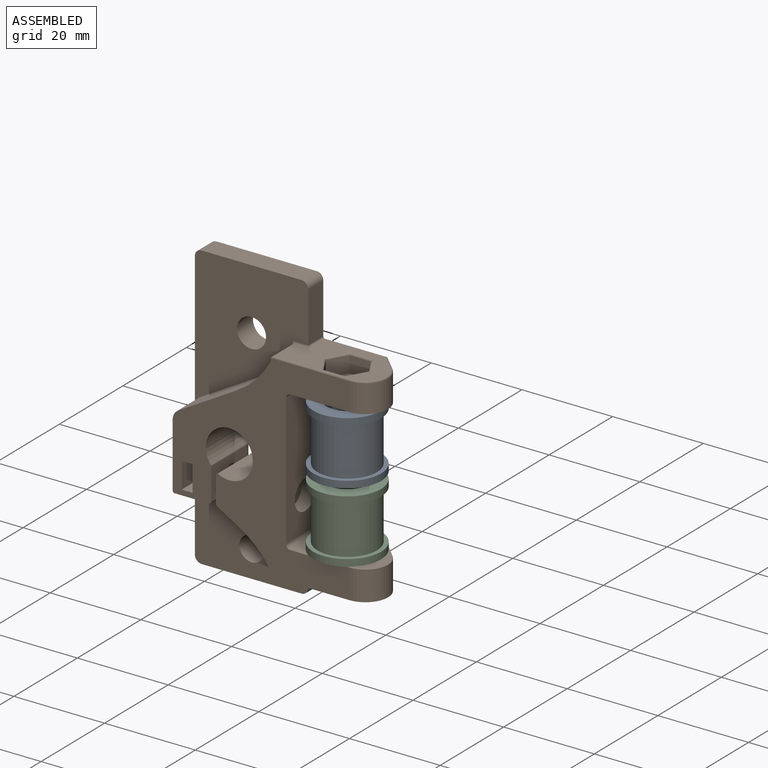
[diagram: assembled view]
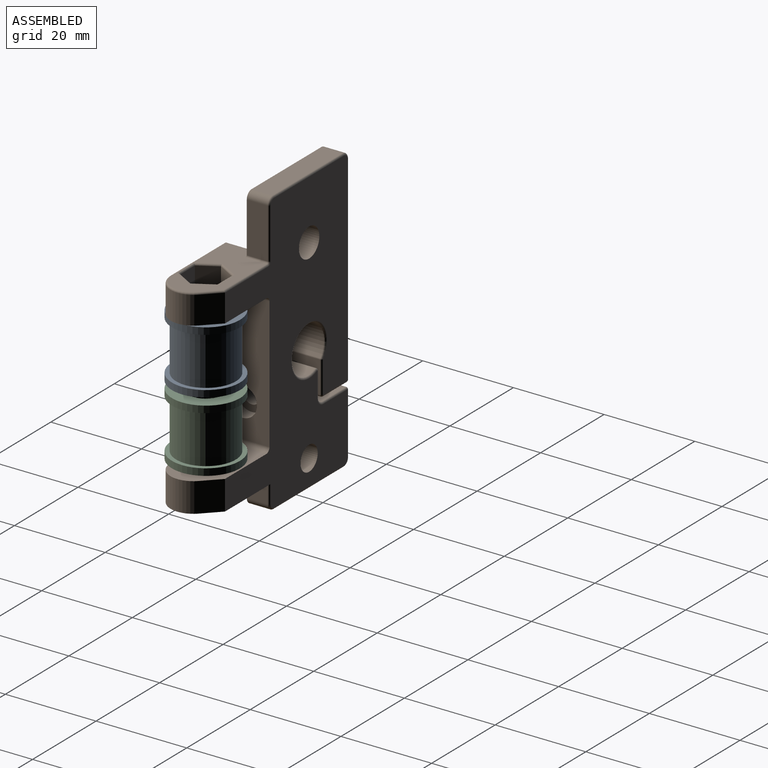
[diagram: assembled view, second angle]
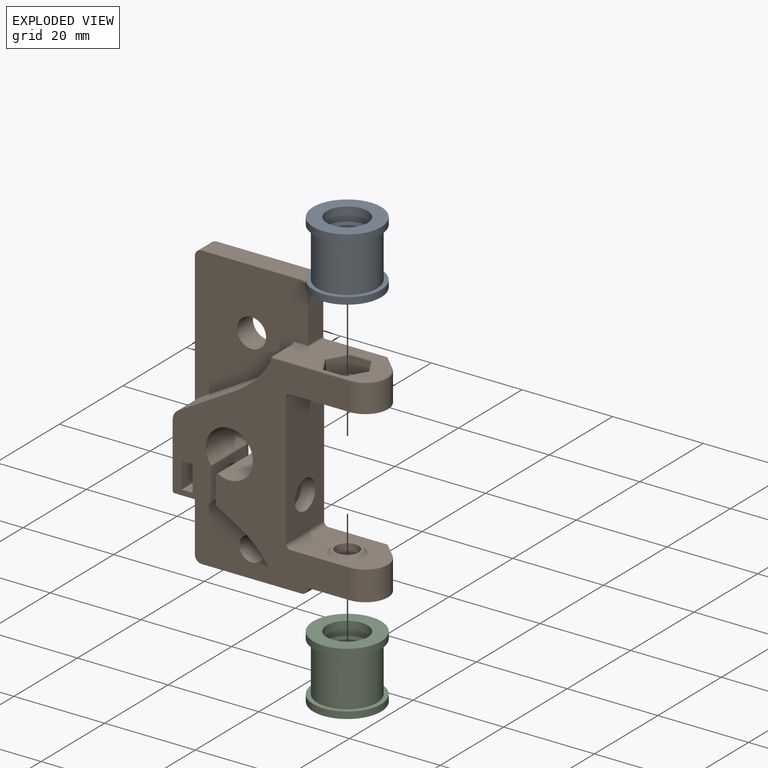
[diagram: exploded view]
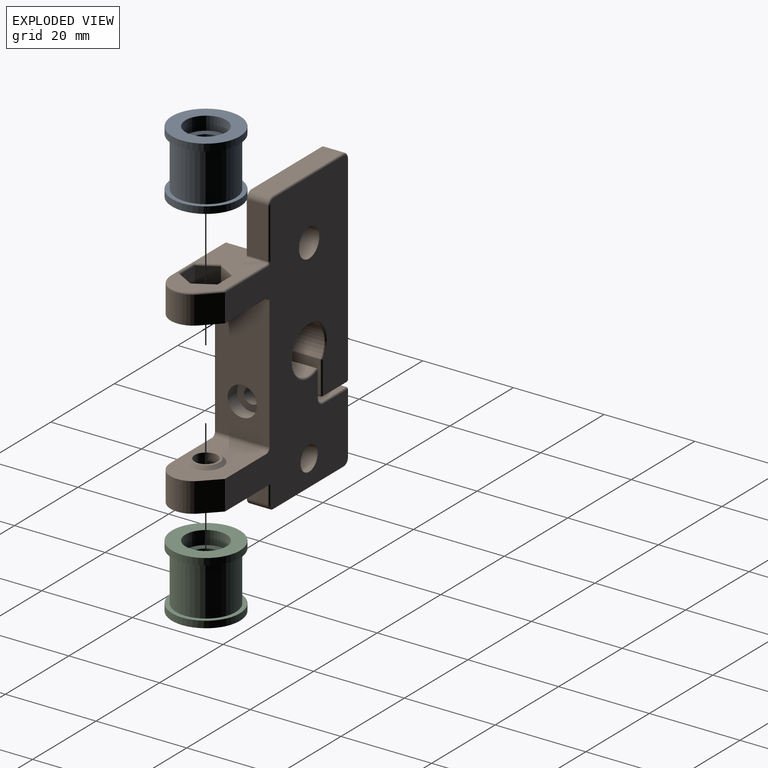
[diagram: exploded view, second angle]
ASSEMBLY  parts=3 mates=2
PART A: 12 faces, bbox 14x15x15 mm
  f0: cylinder r=7.5mm len=15mm, axis (-1,0,0), area 70.7mm2, adj f1,f11
  f1: plane 15x15mm, normal (-1,0,0), area 113.1mm2, adj f0,f2
  f2: cylinder r=4.5mm len=9mm, axis (-1,0,0), area 84.8mm2, adj f1,f3
  f3: plane 9x9mm, normal (-1,0,0), area 35.3mm2, adj f2,f4
  f4: cylinder r=3mm len=8mm, axis (-1,0,0), area 150.8mm2, adj f3,f5
  f5: plane 9x9mm, normal (1,0,0), area 35.3mm2, adj f4,f6
  f6: cylinder r=4.5mm len=9mm, axis (-1,0,0), area 84.8mm2, adj f5,f7
  f7: plane 15x15mm, normal (1,0,0), area 113.1mm2, adj f6,f8
  f8: cylinder r=7.5mm len=15mm, axis (-1,0,0), area 70.7mm2, adj f7,f9
  f9: plane 15x15mm, normal (-1,0,0), area 41.1mm2, adj f8,f10
  f10: cylinder r=6.57mm len=13.14mm, axis (-1,0,0), area 454.1mm2, adj f9,f11
  f11: plane 15x15mm, normal (1,0,0), area 41.1mm2, adj f0,f10
PART B: 109 faces, bbox 44.5x12.4x62.7 mm
  f0: plane 25x17mm, normal (0,-1,0), area 294mm2, adj f36,f37,f38,f39,f40,f41,f42,f43
  f1: plane 18x12mm, normal (0,0,-1), area 154.8mm2, adj f3,f4,f61,f62,f65,f70
  f2: cylinder r=2.5mm len=5mm, axis (0,0,-1), area 50.3mm2, adj f57,f58
  f3: plane 43.6x39mm, normal (0,-1,0), area 754.3mm2, adj f1,f17,f18,f19,f20,f21,f22,f23
  f4: plane 61.7x38.6mm, normal (0,1,0), area 1505.3mm2, adj f1,f23,f35,f46,f50,f62,f63,f64
  f5: cylinder r=2.5mm len=5mm, axis (0,0,1), area 26.7mm2, adj f7,f59
  f6: plane 11.1x4.6mm, normal (1,0,0), area 51.1mm2, adj f15,f24,f80,f82
  f7: plane 8.9x8.9mm, normal (0,0,-1), area 42.6mm2, adj f5,f8
  f8: cylinder r=4.45mm len=8.9mm, axis (0,0,1), area 153.8mm2, adj f7,f69
  f9: plane 6.5x6.5mm, normal (1,0,0), area 23.6mm2, adj f12,f16
  f10: plane 2.85x2.4mm, normal (0,-0.87,0.5), area 7.9mm2, adj f11,f17,f18,f19
  f11: plane 2.85x2.4mm, normal (0,-0.87,-0.5), area 7.9mm2, adj f10,f17,f19,f20
  f12: cylinder r=3.25mm len=6.5mm, axis (-1,0,0), area 61.3mm2, adj f9,f23
  f13: cylinder r=1.75mm len=3.5mm, axis (-1,0,0), area 22mm2, adj f17,f27
  f14: cylinder r=1.75mm len=4.1mm, axis (-1,0,0), area 45.1mm2, adj f19,f31
  f15: plane 31.44x25mm, normal (0,-1,0), area 515.6mm2, adj f6,f21,f22,f24,f25,f26,f27,f35
  f16: cylinder r=1.75mm len=12.5mm, axis (-1,0,0), area 137.4mm2, adj f9,f43
  f17: plane 9.29x5.7mm, normal (1,0,0), area 38.6mm2, adj f3,f10,f11,f13,f18,f20
  f18: plane 7.65x2.4mm, normal (0,0,1), area 18.3mm2, adj f3,f10,f17,f19
  f19: plane 9.29x5.7mm, normal (-1,0,0), area 38.6mm2, adj f3,f10,f11,f14,f18,f20
  f20: plane 7.65x2.4mm, normal (0,0,-1), area 18.3mm2, adj f3,f11,f17,f19
  f21: cylinder r=2.5mm len=7mm, axis (0,-1,0), area 18.3mm2, adj f3,f15,f22,f27
  f22: plane 12.76x7.37mm, normal (-0.5,0,0.87), area 103.1mm2, adj f3,f15,f21,f48
  f23: plane 29x12mm, normal (1,0,0), area 314.8mm2, adj f3,f4,f12,f62,f63
  f24: cylinder r=1.5mm len=4.6mm, axis (0,-1,0), area 10.8mm2, adj f6,f15,f25,f83
  f25: plane 22x4.6mm, normal (0,0,1), area 101.2mm2, adj f15,f24,f26,f84
  f26: cylinder r=1.5mm len=4.6mm, axis (0,-1,0), area 10.8mm2, adj f15,f25,f27,f85
  f27: plane 44x11.6mm, normal (-1,0,0), area 291.2mm2, adj f3,f13,f15,f21,f26,f28,f86
  f28: cylinder r=0.5mm len=11.6mm, axis (0,-1,0), area 9.1mm2, adj f3,f27,f29,f87
  f29: plane 11.6x7.5mm, normal (0,0,-1), area 87mm2, adj f3,f28,f30,f88
  f30: cylinder r=0.5mm len=11.6mm, axis (0,-1,0), area 9.1mm2, adj f3,f29,f31,f89
  f31: plane 11.6x7mm, normal (1,0,0), area 71.6mm2, adj f3,f14,f30,f32,f90
  f32: cylinder r=0.5mm len=11.6mm, axis (0,1,0), area 3.8mm2, adj f3,f31,f33,f91
  f33: cylinder r=5.2mm len=11.6mm, axis (0,-1,0), area 351.5mm2, adj f3,f32,f34,f92
  f34: cylinder r=0.5mm len=11.6mm, axis (0,-1,0), area 11.7mm2, adj f3,f33,f43,f93
  f35: cylinder r=3.2mm len=6.4mm, axis (0,-1,0), area 100.5mm2, adj f4,f15
  f36: cylinder r=1.5mm len=4.6mm, axis (0,-1,0), area 10.8mm2, adj f0,f37,f47,f101
  f37: plane 22x4.6mm, normal (0,0,-1), area 101.2mm2, adj f0,f36,f38,f100
  f38: cylinder r=1.5mm len=4.6mm, axis (0,-1,0), area 10.8mm2, adj f0,f37,f39,f99
  f39: plane 13.5x4.6mm, normal (-1,0,0), area 62.1mm2, adj f0,f38,f40,f98
  f40: cylinder r=0.5mm len=4.6mm, axis (0,1,0), area 3.6mm2, adj f0,f39,f41,f97
  f41: plane 7.5x4.6mm, normal (0,0,1), area 34.5mm2, adj f0,f40,f42,f96
  f42: cylinder r=1.5mm len=4.6mm, axis (0,1,0), area 10.8mm2, adj f0,f41,f43,f95
  f43: plane 11.6x5.59mm, normal (-1,0,0), area 54.2mm2, adj f0,f3,f16,f34,f42,f44,f94
  f44: cylinder r=0.5mm len=7mm, axis (0,-1,0), area 3.7mm2, adj f0,f3,f43,f45
  f45: plane 7x4.7mm, normal (-0.5,0,-0.87), area 38mm2, adj f0,f3,f44,f49
  f46: cylinder r=2.7mm len=5.4mm, axis (0,-1,0), area 84.8mm2, adj f0,f4
  f47: plane 4.6x4mm, normal (1,0,0), area 18.4mm2, adj f0,f36,f69,f102
  f48: cylinder r=20.28mm len=7.91mm, axis (0,1,0), area 78.2mm2, adj f3,f15,f22,f66,f74
  f49: cylinder r=20.28mm len=7.26mm, axis (0,-1,0), area 72.1mm2, adj f0,f3,f45,f68
  f50: plane 18x12mm, normal (0,0,1), area 154.8mm2, adj f3,f4,f60,f63,f64,f71
  f51: plane 4.1x3.6mm, normal (-0.87,-0.5,0), area 17mm2, adj f52,f56,f57,f104
  f52: plane 4.73x3.6mm, normal (0,-1,0), area 17mm2, adj f51,f53,f57,f106
  f53: plane 4.1x3.6mm, normal (0.87,-0.5,0), area 17mm2, adj f52,f54,f57,f108
  f54: plane 4.1x3.6mm, normal (0.87,0.5,0), area 17mm2, adj f53,f55,f57,f107
  f55: plane 4.73x3.6mm, normal (0,1,0), area 17mm2, adj f54,f56,f57,f105
  f56: plane 4.1x3.6mm, normal (-0.87,0.5,0), area 17mm2, adj f51,f55,f57,f103
  f57: plane 9.47x8.2mm, normal (0,0,1), area 38.6mm2, adj f2,f51,f52,f53,f54,f55,f56
  f58: plane 6x6mm, normal (0,0,-1), area 8.6mm2, adj f2,f61
  f59: plane 6x6mm, normal (0,0,1), area 8.6mm2, adj f5,f60
  f60: cone r=3mm half-angle=45deg, axis (0,0,-1), area 20.8mm2, adj f50,f59
  f61: cone r=3mm half-angle=45deg, axis (0,0,1), area 20.8mm2, adj f1,f58
  f62: cylinder r=1mm len=12mm, axis (0,-1,0), area 18.8mm2, adj f1,f3,f4,f23
  f63: cylinder r=1mm len=12mm, axis (0,1,0), area 18.8mm2, adj f3,f4,f23,f50
  f64: plane 6.5x3.5mm, normal (0.7,0.71,0), area 31.8mm2, adj f4,f50,f69,f71
  f65: plane 6.1x3.5mm, normal (0.7,0.71,0), area 29.9mm2, adj f1,f4,f70,f77
  f66: plane 6.6x0.6mm, normal (-1,0,0), area 4mm2, adj f3,f48,f73,f74
  f67: plane 21.49x11.2mm, normal (0,0,1), area 138mm2, adj f72,f73,f75,f77,f78,f79,f80,f103
  f68: plane 7x1mm, normal (-1,0,0), area 7mm2, adj f0,f3,f49,f69
  f69: plane 22.29x12mm, normal (0,0,-1), area 170.7mm2, adj f0,f3,f4,f8,f47,f64,f68,f71
  f70: cylinder r=5mm len=8.57mm, axis (0,0,-1), area 72.2mm2, adj f1,f3,f65,f75
  f71: cylinder r=5mm len=8.57mm, axis (0,0,1), area 76.9mm2, adj f3,f50,f64,f69
  f72: cylinder r=0.4mm len=17.29mm, axis (-1,0,0), area 10.8mm2, adj f3,f67,f73,f75
  f73: cylinder r=0.4mm len=6.6mm, axis (0,1,0), area 4.1mm2, adj f66,f67,f72,f76
  f74: cylinder r=0.4mm len=1.31mm, axis (0,0,-1), area 0.5mm2, adj f15,f48,f66,f76
  f75: torus R=4.6mm, axis (0,0,1), area 7.2mm2, adj f67,f70,f72,f77
  f76: torus R=0.8mm, axis (0,-1,0), area 0.5mm2, adj f15,f73,f74,f78
  f77: cylinder r=0.4mm len=3.78mm, axis (-0.71,0.7,0), area 3mm2, adj f65,f67,f75,f79
  f78: cylinder r=0.4mm len=3.29mm, axis (-1,0,0), area 1.9mm2, adj f15,f67,f76,f80
  f79: cylinder r=0.4mm len=13.6mm, axis (-1,0,0), area 8.5mm2, adj f4,f67,f77,f81
  f80: cylinder r=0.4mm len=5mm, axis (0,-1,0), area 3mm2, adj f6,f67,f78,f81
  f81: torus R=0.8mm, axis (0,-1,0), area 0.5mm2, adj f4,f79,f80,f82
  f82: cylinder r=0.4mm len=11.1mm, axis (0,0,-1), area 7mm2, adj f4,f6,f81,f83
  f83: torus R=1.1mm, axis (0,-1,0), area 1.3mm2, adj f4,f24,f82,f84
  f84: cylinder r=0.4mm len=22mm, axis (1,0,0), area 13.8mm2, adj f4,f25,f83,f85
  f85: torus R=1.1mm, axis (0,-1,0), area 1.3mm2, adj f4,f26,f84,f86
  f86: cylinder r=0.4mm len=44mm, axis (0,0,1), area 27.6mm2, adj f4,f27,f85,f87
  f87: torus R=0.1mm, axis (0,-1,0), area 0.4mm2, adj f4,f28,f86,f88
  f88: cylinder r=0.4mm len=7.5mm, axis (1,0,0), area 4.7mm2, adj f4,f29,f87,f89
  f89: torus R=0.1mm, axis (0,-1,0), area 0.4mm2, adj f4,f30,f88,f90
  f90: cylinder r=0.4mm len=7mm, axis (0,0,1), area 4.4mm2, adj f4,f31,f89,f91
  f91: torus R=0.1mm, axis (0,-1,0), area 0.1mm2, adj f4,f32,f90,f92
  f92: torus R=5.6mm, axis (0,-1,0), area 19.6mm2, adj f4,f33,f91,f93
  f93: torus R=0.1mm, axis (0,-1,0), area 0.5mm2, adj f4,f34,f92,f94
  f94: cylinder r=0.4mm len=5.38mm, axis (0,0,1), area 3.4mm2, adj f4,f43,f93,f95
  f95: torus R=1.9mm, axis (0,-1,0), area 1.6mm2, adj f4,f42,f94,f96
  f96: cylinder r=0.4mm len=7.5mm, axis (-1,0,0), area 4.7mm2, adj f4,f41,f95,f97
  f97: torus R=0.1mm, axis (0,-1,0), area 0.4mm2, adj f4,f40,f96,f98
  f98: cylinder r=0.4mm len=13.5mm, axis (0,0,1), area 8.5mm2, adj f4,f39,f97,f99
  f99: torus R=1.1mm, axis (0,-1,0), area 1.3mm2, adj f4,f38,f98,f100
  f100: cylinder r=0.4mm len=22mm, axis (-1,0,0), area 13.8mm2, adj f4,f37,f99,f101
  f101: torus R=1.1mm, axis (0,-1,0), area 1.3mm2, adj f4,f36,f100,f102
  f102: cylinder r=0.4mm len=4mm, axis (0,0,-1), area 2.5mm2, adj f4,f47,f69,f101
  f103: cylinder r=0.4mm len=4.7mm, axis (-0.5,-0.87,0), area 3.1mm2, adj f56,f67,f104,f105
  f104: cylinder r=0.4mm len=4.7mm, axis (0.5,-0.87,0), area 3.1mm2, adj f51,f67,f103,f106
  f105: cylinder r=0.4mm len=5.2mm, axis (-1,0,0), area 3.1mm2, adj f55,f67,f103,f107
  f106: cylinder r=0.4mm len=5.2mm, axis (1,0,0), area 3.1mm2, adj f52,f67,f104,f108
  f107: cylinder r=0.4mm len=4.7mm, axis (-0.5,0.87,0), area 3.1mm2, adj f54,f67,f105,f108
  f108: cylinder r=0.4mm len=4.7mm, axis (0.5,0.87,0), area 3.1mm2, adj f53,f67,f106,f107
PART C: same geometry as A
PLACE A rot(axis=(0,1,0),90deg) t=(-16.06,-9.33,19.53)mm
PLACE B t=(-30.46,-2.33,1.91)mm
PLACE C rot(axis=(0,1,0),90deg) t=(-16.06,-9.33,3.93)mm
MATE fastened A.f0 <-> B.f8  axis (0,0,1) through (-7.96,-9.33,16.71)mm
MATE fastened C.f0 <-> B.f60  axis (0,0,-1) through (-7.96,-9.33,-12.89)mm
